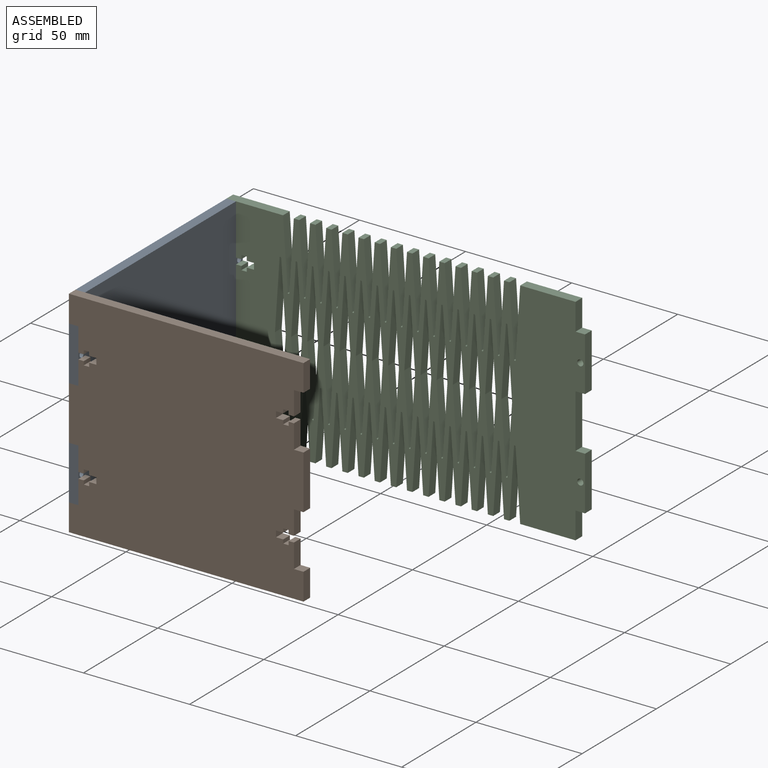
[diagram: assembled view]
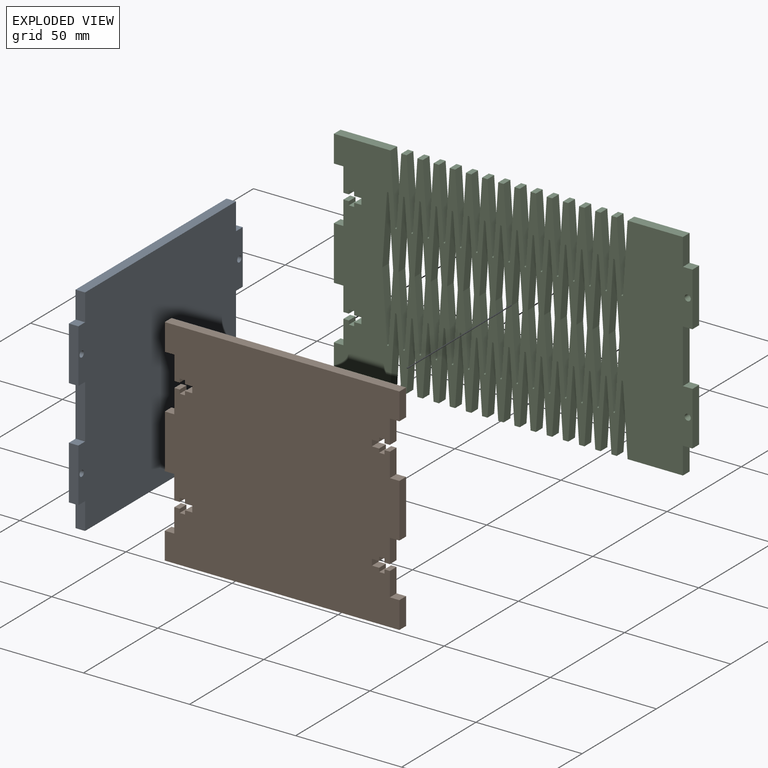
[diagram: exploded view]
GUIDED TOUR — MATED ASSEMBLY (Onshape document 620fd56f94842f0f758b062b, AutoMate assembly 620fd56f94842f0f758b062b_859dbe9e5be941bf207c56d8_f9bc85e75ceb082ee471d92e_default)

This assembly has 3 components, labeled P0..P2 below (a component is one placed occurrence of a part; the same part can appear more than once), held together by 7 mates. A mate is a constraint between two components; its type names the relative motion it leaves free:
  PARALLEL — keeps the two listed directions parallel,
  PLANAR — leaves sliding in the plane through the listed point (normal = the listed direction) and rotation about that normal free,
  SLIDER — leaves translation along the listed axis free.
Axis/direction vectors are unit vectors and 'through' points are millimeter coordinates, both in the assembly's world frame.

MATES
  1. PLANAR "Planar 3": P2 <-> P0, direction (0.000, 1.000, 0.000) through (-87.30, -43.30, -77.40) mm
  2. PARALLEL "Parallel 1": P1 <-> P0, direction (-1.000, 0.000, 0.000) through (-174.18, -151.64, -77.40) mm
  3. PARALLEL "Parallel 2": P0 <-> P1, direction (0.000, -1.000, 0.000) through (-171.93, -153.89, -102.80) mm
  4. PLANAR "Planar 1": P0 <-> P1, direction (0.000, 0.000, -1.000) through (-169.68, -149.40, -128.20) mm
  5. PLANAR "Planar 4": P2 <-> P0, direction (0.000, 0.000, 1.000) through (-22.70, -45.55, -26.60) mm
  6. PLANAR "Planar 2": P0 <-> P2, direction (-1.000, 0.000, 0.000) through (-174.18, -98.60, -77.40) mm
  7. SLIDER "Slider 1": P0 <-> P1, axis (0.000, 0.000, -1.000) through (-171.93, -151.64, -115.50) mm

ASSEMBLY ORDER
  1. P0 — the base component [order verified]
  2. P2 [order verified]
  3. P1 [order verified]
Order-tag legend:
  [order verified] — this step's position reverses a verified removal order: the component was checked to insert without passing through the ones already placed.

Of the 3 components, 2 carry the full construction recipe — the FeatureScript program that regenerates the part's solid from scratch; the rest are supplied as boundary geometry only.
Each toured component is shown spotlighted twice — in the assembled view, then in the exploded view, where a leader line traces a displaced component back to its assembled socket (saturated green if recipe-attached, orange if geometry-only; every other component desaturated gray) — followed by its recipe or geometry summary and the mates that hold it.
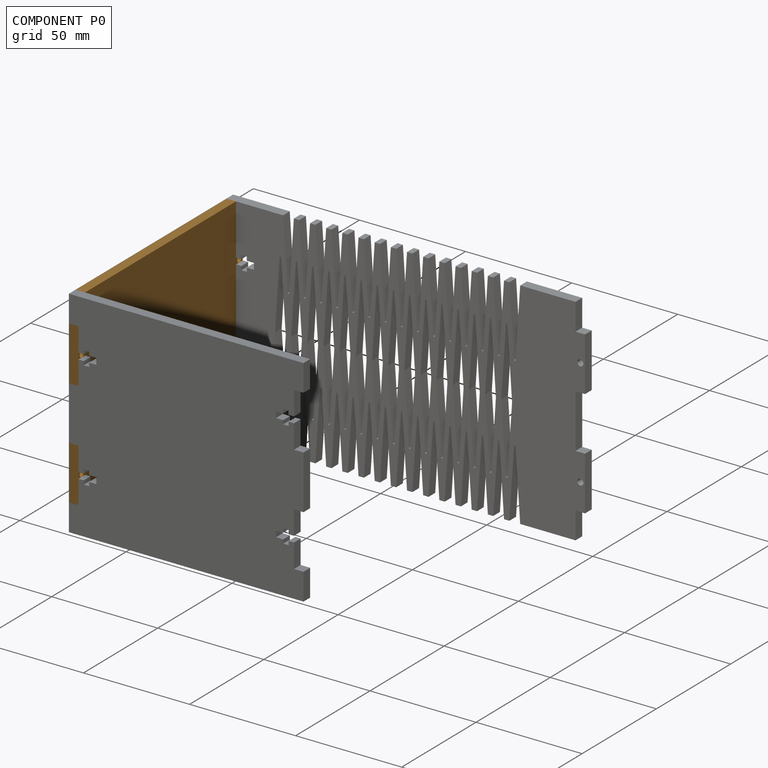
[diagram: component P0 — assembled]
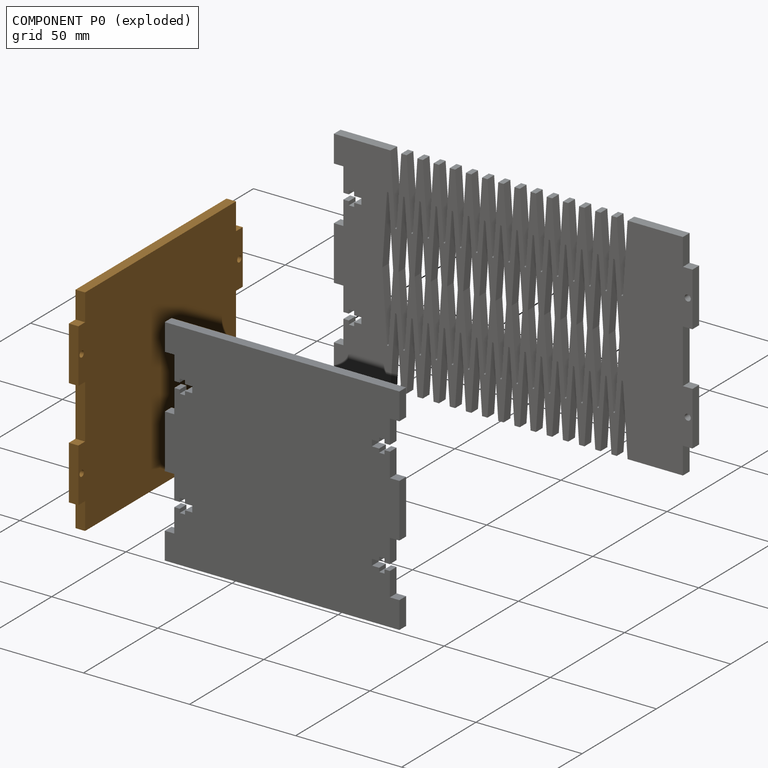
[diagram: component P0 — exploded]
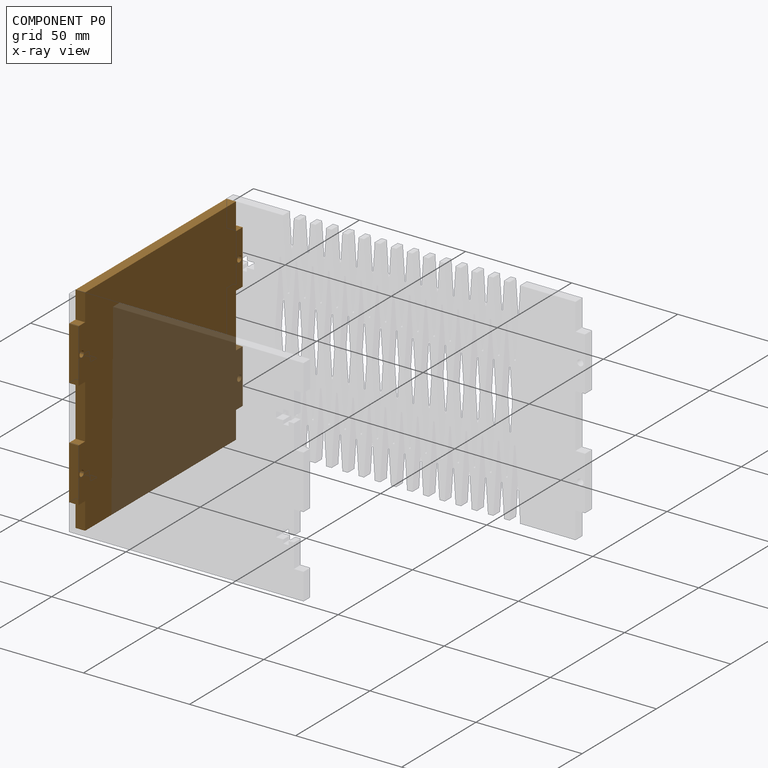
[diagram: component P0 — x-ray view]
COMPONENT P0 — geometry summary (no construction recipe available for this part):
  bounding box: 110.6 x 101.6 x 4.5 mm
  B-rep topology: 1 solid, 26 faces, 144 edges
  volume: 48343 mm^3 (96% of its bounding box)
  symmetry: 2-fold rotationally symmetric about the x axis; 2-fold rotationally symmetric about the y axis; 2-fold rotationally symmetric about the z axis; mirror-symmetric across its x mid-plane, y mid-plane, z mid-plane
Held by: PLANAR mate "Planar 3" to P2; PARALLEL mate "Parallel 1" to P1; PARALLEL mate "Parallel 2" to P1; PLANAR mate "Planar 1" to P1; PLANAR mate "Planar 4" to P2; PLANAR mate "Planar 2" to P2; SLIDER mate "Slider 1" to P1.
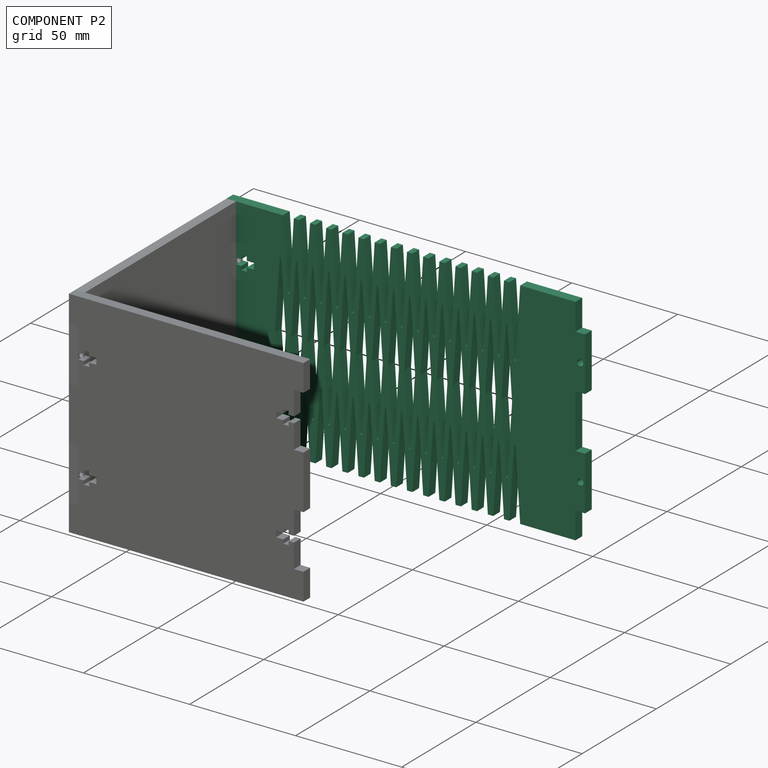
[diagram: component P2 — assembled]
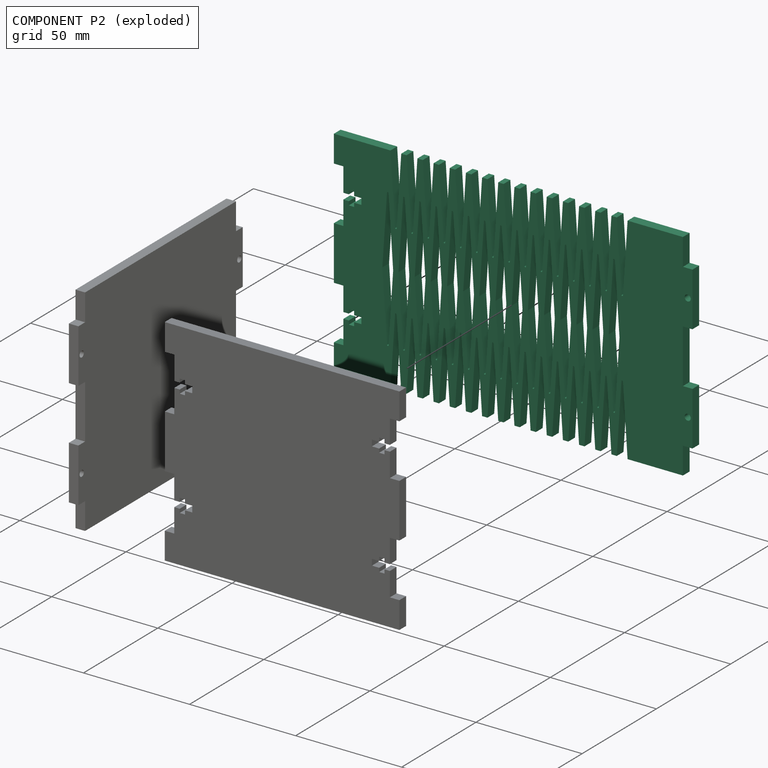
[diagram: component P2 — exploded]
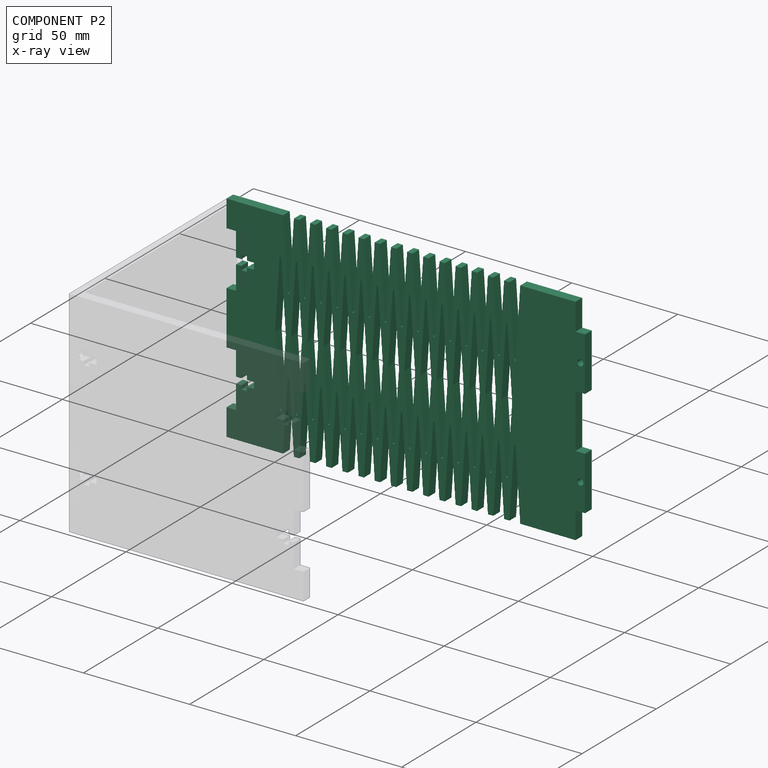
[diagram: component P2 — x-ray view]
COMPONENT P2 — recipe-attached (CADFS 00814797, mesh-verified: the recipe's output STEP matches this component's geometry to below the mesh-comparison resolution (tessellation chordal tolerance ~0.296 mm)).
Held by: PLANAR mate "Planar 3" to P0; PLANAR mate "Planar 4" to P0; PLANAR mate "Planar 2" to P0.
Construction recipe (FeatureScript — the CAD program that rebuilds this solid; sketch coordinates are in the units given by the * unit suffixes, e.g. mm):

FeatureScript 1511;
import(path : "onshape/std/geometry.fs", version : "1511.0");
import(path : "onshape/std/common.fs", version : "1511.0");
const mm = millimeter;
const VERTEX = EntityType.VERTEX;
const EDGE = EntityType.EDGE;
const FACE = EntityType.FACE;
const BODY = EntityType.BODY;
function v(x, y){return vector(x, y);}
function OD(order){return orderDisambiguation(order);}
function OSD(set){return originalSetDisambiguation(set);}
function TD(topology){return topologyDisambiguation(topology);}
function TDD(query){return trueDependencyDisambiguation(query);}
function sQuery(a, b, c) {return sketchEntityQuery(a, b, c);}

annotation { "Feature Type Name" : "Feature", "Feature Type Description" : "" }
export const myFeature = defineFeature(function(context is Context, id is Id, definition is map)
    precondition{}
    {
        {
            var Q0;
            Q0=qCreatedBy(makeId("Top.planeOp"),FACE);
            var sketch = newSketch(context, id + "F0", { "sketchPlane" : qUnion([Q0])});
            skLineSegment(sketch, "E0.bottom", {"start": v(-80, 50.8) * mm, "end": v(80.01, 50.8) * mm});
            skLineSegment(sketch, "E0.top", {"start": v(-80, -50.8) * mm, "end": v(80.01, -50.8) * mm});
            skLineSegment(sketch, "E1", {"start": v(-80.01, 50.8) * mm, "end": v(80.01, -50.8) * mm, "construction": true});
            skLineSegment(sketch, "E2.left", {"start": v(-80, 38.1) * mm, "end": v(-80, 26.85) * mm});
            skLineSegment(sketch, "E3", {"start": v(-80, 50.8) * mm, "end": v(-84.5, 50.8) * mm});
            skLineSegment(sketch, "E4", {"start": v(-84.5, 50.8) * mm, "end": v(-84.5, 38.1) * mm});
            skLineSegment(sketch, "E5", {"start": v(-84.5, 38.1) * mm, "end": v(-80, 38.1) * mm});
            skLineSegment(sketch, "E6", {"start": v(-80, 12.7) * mm, "end": v(-84.5, 12.7) * mm});
            skLineSegment(sketch, "E7", {"start": v(-84.5, 12.7) * mm, "end": v(-84.5, 0) * mm});
            skLineSegment(sketch, "E8", {"start": v(-80, 26.85) * mm, "end": v(-77.47, 26.85) * mm});
            skLineSegment(sketch, "E9", {"start": v(-77.47, 26.85) * mm, "end": v(-77.47, 28.64) * mm});
            skLineSegment(sketch, "E10", {"start": v(-77.47, 28.64) * mm, "end": v(-74.96, 28.64) * mm});
            skLineSegment(sketch, "E11", {"start": v(-74.96, 28.64) * mm, "end": v(-74.96, 26.85) * mm});
            skLineSegment(sketch, "E12", {"start": v(-74.96, 26.85) * mm, "end": v(-71.55, 26.85) * mm});
            skLineSegment(sketch, "E13", {"start": v(-71.55, 26.85) * mm, "end": v(-71.55, 23.95) * mm});
            skLineSegment(sketch, "E14", {"start": v(-71.55, 23.95) * mm, "end": v(-74.96, 23.95) * mm});
            skLineSegment(sketch, "E15", {"start": v(-74.96, 23.95) * mm, "end": v(-74.96, 22.16) * mm});
            skLineSegment(sketch, "E16", {"start": v(-74.96, 22.16) * mm, "end": v(-77.47, 22.16) * mm});
            skLineSegment(sketch, "E17", {"start": v(-77.47, 22.16) * mm, "end": v(-77.47, 23.95) * mm});
            skLineSegment(sketch, "E18", {"start": v(-77.47, 23.95) * mm, "end": v(-80, 23.95) * mm});
            skLineSegment(sketch, "E19", {"start": v(-77.47, 26.85) * mm, "end": v(-77.47, 23.95) * mm, "construction": true});
            skLineSegment(sketch, "E20", {"start": v(-74.96, 26.85) * mm, "end": v(-74.96, 23.95) * mm, "construction": true});
            skLineSegment(sketch, "E21", {"start": v(-71.55, 25.4) * mm, "end": v(-80, 25.4) * mm, "construction": true});
            skPoint(sketch, "E21.endSnap0", {"position": v(-74.96, 25.4) * mm});
            skLineSegment(sketch, "E22", {"start": v(-80, 23.95) * mm, "end": v(-80, 12.7) * mm});
            skLineSegment(sketch, "E23", {"start": v(-80, 23.95) * mm, "end": v(-80, 26.85) * mm, "construction": true});
            skLineSegment(sketch, "E24", {"start": v(0, 0) * mm, "end": v(-84.5, 0) * mm, "construction": true});
            skLineSegment(sketch, "E25.MirrorCS", {"start": v(-77.47, -26.85) * mm, "end": v(-77.47, -28.64) * mm});
            skLineSegment(sketch, "E26.MirrorCS", {"start": v(-77.47, -28.64) * mm, "end": v(-74.96, -28.64) * mm});
            skLineSegment(sketch, "E27.MirrorCS", {"start": v(-74.96, -28.64) * mm, "end": v(-74.96, -26.85) * mm});
            skLineSegment(sketch, "E28.MirrorCS", {"start": v(-80, -26.85) * mm, "end": v(-77.47, -26.85) * mm});
            skLineSegment(sketch, "E29.MirrorCS", {"start": v(-71.55, -23.95) * mm, "end": v(-74.96, -23.95) * mm});
            skLineSegment(sketch, "E30.MirrorCS", {"start": v(-74.96, -26.85) * mm, "end": v(-74.96, -23.95) * mm, "construction": true});
            skLineSegment(sketch, "E31.MirrorCS", {"start": v(-77.47, -23.95) * mm, "end": v(-80, -23.95) * mm});
            skLineSegment(sketch, "E32.MirrorCS", {"start": v(-71.55, -25.4) * mm, "end": v(-80, -25.4) * mm, "construction": true});
            skLineSegment(sketch, "E33.MirrorCS", {"start": v(-74.96, -23.95) * mm, "end": v(-74.96, -22.16) * mm});
            skLineSegment(sketch, "E34.MirrorCS", {"start": v(-77.47, -22.16) * mm, "end": v(-77.47, -23.95) * mm});
            skLineSegment(sketch, "E35.MirrorCS", {"start": v(-80, -23.95) * mm, "end": v(-80, -26.85) * mm, "construction": true});
            skLineSegment(sketch, "E36.MirrorCS", {"start": v(-77.47, -26.85) * mm, "end": v(-77.47, -23.95) * mm, "construction": true});
            skLineSegment(sketch, "E37.MirrorCS", {"start": v(-74.96, -26.85) * mm, "end": v(-71.55, -26.85) * mm});
            skLineSegment(sketch, "E38.MirrorCS", {"start": v(-71.55, -26.85) * mm, "end": v(-71.55, -23.95) * mm});
            skLineSegment(sketch, "E39.MirrorCS", {"start": v(-74.96, -22.16) * mm, "end": v(-77.47, -22.16) * mm});
            skLineSegment(sketch, "E40.MirrorCS", {"start": v(-80, -12.7) * mm, "end": v(-84.5, -12.7) * mm});
            skLineSegment(sketch, "E41.MirrorCS", {"start": v(-84.5, -38.1) * mm, "end": v(-80, -38.1) * mm});
            skLineSegment(sketch, "E42.MirrorCS", {"start": v(-80, -50.8) * mm, "end": v(-84.5, -50.8) * mm});
            skLineSegment(sketch, "E43.MirrorCS", {"start": v(-84.5, -12.7) * mm, "end": v(-84.5, 0) * mm});
            skLineSegment(sketch, "E44.MirrorCS", {"start": v(-80, -23.95) * mm, "end": v(-80, -12.7) * mm});
            skPoint(sketch, "E45.MirrorP", {"position": v(-74.96, -25.4) * mm});
            skLineSegment(sketch, "E46.MirrorCS", {"start": v(-84.5, -50.8) * mm, "end": v(-84.5, -38.1) * mm});
            skLineSegment(sketch, "E47.MirrorCS", {"start": v(-80, -38.1) * mm, "end": v(-80, -26.85) * mm});
            skLineSegment(sketch, "E48.MirrorCS", {"start": v(80.01, 50.8) * mm, "end": v(80.01, 38.1) * mm});
            skLineSegment(sketch, "E49", {"start": v(80.01, 38.1) * mm, "end": v(84.5, 38.1) * mm});
            skLineSegment(sketch, "E50", {"start": v(84.5, 38.1) * mm, "end": v(84.5, 12.7) * mm});
            skLineSegment(sketch, "E51", {"start": v(84.5, 12.7) * mm, "end": v(80.01, 12.7) * mm});
            skLineSegment(sketch, "E52", {"start": v(80.01, 12.7) * mm, "end": v(80.01, 0) * mm});
            skCircle(sketch, "E53", {"center": v(82.26, 25.4) * mm, "radius": 1.45 * mm});
            skPoint(sketch, "E53.centerSnap0", {"position": v(84.5, 25.4) * mm});
            skLineSegment(sketch, "E54", {"start": v(0, 0) * mm, "end": v(80, 0) * mm, "construction": true});
            skLineSegment(sketch, "E55", {"start": v(84.5, 38.1) * mm, "end": v(80.01, 12.7) * mm, "construction": true});
            skLineSegment(sketch, "E56.MirrorCS", {"start": v(80.01, -38.1) * mm, "end": v(84.5, -38.1) * mm});
            skLineSegment(sketch, "E57.MirrorCS", {"start": v(84.5, -12.7) * mm, "end": v(80.01, -12.7) * mm});
            skCircle(sketch, "E58.MirrorC", {"center": v(82.26, -25.4) * mm, "radius": 1.45 * mm});
            skLineSegment(sketch, "E59.MirrorCS", {"start": v(80.01, -12.7) * mm, "end": v(80.01, 0) * mm});
            skLineSegment(sketch, "E60.MirrorCS", {"start": v(80.01, -50.8) * mm, "end": v(80.01, -38.1) * mm});
            skPoint(sketch, "E61.MirrorP", {"position": v(84.5, -25.4) * mm});
            skLineSegment(sketch, "E62.MirrorCS", {"start": v(84.5, -38.1) * mm, "end": v(84.5, -12.7) * mm});
            skSolve(sketch);
        }
        {
            var Q0;
            Q0 = qSketchRegion(id + "F0", true);
            extrude(context, id + "F1", {"entities" : qUnion([Q0]), "depth" : 4.5 * mm, "offsetDistance" : 25.4 * mm});
        }
        {
            var Q0;
            Q0=makeQuery(id+"F1.opExtrude","CAP_FACE",FACE,{"disambiguationData":[OSD([sQuery(id+"F0.wireOp",EDGE,"E0.bottom"),sQuery(id+"F0.wireOp",EDGE,"E0.top"),sQuery(id+"F0.wireOp",EDGE,"E2.left"),sQuery(id+"F0.wireOp",EDGE,"E3"),sQuery(id+"F0.wireOp",EDGE,"E4"),sQuery(id+"F0.wireOp",EDGE,"E5"),sQuery(id+"F0.wireOp",EDGE,"E6"),sQuery(id+"F0.wireOp",EDGE,"E7"),sQuery(id+"F0.wireOp",EDGE,"E8"),sQuery(id+"F0.wireOp",EDGE,"E9"),sQuery(id+"F0.wireOp",EDGE,"E10"),sQuery(id+"F0.wireOp",EDGE,"E11"),sQuery(id+"F0.wireOp",EDGE,"E12"),sQuery(id+"F0.wireOp",EDGE,"E13"),sQuery(id+"F0.wireOp",EDGE,"E14"),sQuery(id+"F0.wireOp",EDGE,"E15"),sQuery(id+"F0.wireOp",EDGE,"E16"),sQuery(id+"F0.wireOp",EDGE,"E17"),sQuery(id+"F0.wireOp",EDGE,"E18"),sQuery(id+"F0.wireOp",EDGE,"E22"),sQuery(id+"F0.wireOp",EDGE,"E25.MirrorCS"),sQuery(id+"F0.wireOp",EDGE,"E26.MirrorCS"),sQuery(id+"F0.wireOp",EDGE,"E27.MirrorCS"),sQuery(id+"F0.wireOp",EDGE,"E28.MirrorCS"),sQuery(id+"F0.wireOp",EDGE,"E29.MirrorCS"),sQuery(id+"F0.wireOp",EDGE,"E31.MirrorCS"),sQuery(id+"F0.wireOp",EDGE,"E33.MirrorCS"),sQuery(id+"F0.wireOp",EDGE,"E34.MirrorCS"),sQuery(id+"F0.wireOp",EDGE,"E37.MirrorCS"),sQuery(id+"F0.wireOp",EDGE,"E38.MirrorCS"),sQuery(id+"F0.wireOp",EDGE,"E39.MirrorCS"),sQuery(id+"F0.wireOp",EDGE,"E40.MirrorCS"),sQuery(id+"F0.wireOp",EDGE,"E41.MirrorCS"),sQuery(id+"F0.wireOp",EDGE,"E42.MirrorCS"),sQuery(id+"F0.wireOp",EDGE,"E43.MirrorCS"),sQuery(id+"F0.wireOp",EDGE,"E44.MirrorCS"),sQuery(id+"F0.wireOp",EDGE,"E46.MirrorCS"),sQuery(id+"F0.wireOp",EDGE,"E47.MirrorCS"),sQuery(id+"F0.wireOp",EDGE,"E48.MirrorCS"),sQuery(id+"F0.wireOp",EDGE,"E49"),sQuery(id+"F0.wireOp",EDGE,"E50"),sQuery(id+"F0.wireOp",EDGE,"E51"),sQuery(id+"F0.wireOp",EDGE,"E52"),sQuery(id+"F0.wireOp",EDGE,"E53"),sQuery(id+"F0.wireOp",EDGE,"E56.MirrorCS"),sQuery(id+"F0.wireOp",EDGE,"E57.MirrorCS"),sQuery(id+"F0.wireOp",EDGE,"E58.MirrorC"),sQuery(id+"F0.wireOp",EDGE,"E59.MirrorCS"),sQuery(id+"F0.wireOp",EDGE,"E60.MirrorCS"),sQuery(id+"F0.wireOp",EDGE,"E62.MirrorCS")])],"isStart":false});
            var sketch = newSketch(context, id + "F2", { "sketchPlane" : qUnion([Q0])});
            skLineSegment(sketch, "E63", {"start": v(-59.49, 32.4) * mm, "end": v(-61.65, 0) * mm});
            skLineSegment(sketch, "E64", {"start": v(-61.65, 0) * mm, "end": v(-56.57, 0) * mm, "construction": true});
            skLineSegment(sketch, "E65", {"start": v(-56.57, 0) * mm, "end": v(-58.73, 32.4) * mm});
            skLineSegment(sketch, "E66", {"start": v(-57.84, 50.8) * mm, "end": v(-55.68, 18.4) * mm});
            skLineSegment(sketch, "E67", {"start": v(-54.92, 18.4) * mm, "end": v(-52.76, 50.8) * mm});
            skLineSegment(sketch, "E68", {"start": v(-52.76, 50.8) * mm, "end": v(-57.84, 50.8) * mm});
            skLineSegment(sketch, "E69", {"start": v(-59.1, 38.1) * mm, "end": v(-59.1, 0) * mm, "construction": true});
            skLineSegment(sketch, "E70", {"start": v(-55.3, 12.7) * mm, "end": v(-55.3, 50.8) * mm, "construction": true});
            skPoint(sketch, "E71.visualSharp", {"position": v(-59.1, 38.1) * mm});
            skArc(sketch, "E71.filletArc", {"start": v(-58.73, 32.4) * mm, "mid": v(-59.1, 32.75) * mm, "end": v(-59.49, 32.4) * mm});
            skPoint(sketch, "E72.visualSharp", {"position": v(-55.3, 12.7) * mm});
            skArc(sketch, "E72.filletArc", {"start": v(-55.68, 18.4) * mm, "mid": v(-55.3, 18.05) * mm, "end": v(-54.92, 18.4) * mm});
            skArc(sketch, "E73.MirrorCS", {"start": v(-55.68, -18.4) * mm, "mid": v(-55.3, -18.05) * mm, "end": v(-54.92, -18.4) * mm});
            skArc(sketch, "E74.MirrorCS", {"start": v(-58.73, -32.4) * mm, "mid": v(-59.1, -32.75) * mm, "end": v(-59.49, -32.4) * mm});
            skLineSegment(sketch, "E75.MirrorCS", {"start": v(-52.76, -50.8) * mm, "end": v(-57.84, -50.8) * mm});
            skLineSegment(sketch, "E76.MirrorCS", {"start": v(-57.84, -50.8) * mm, "end": v(-55.68, -18.4) * mm});
            skLineSegment(sketch, "E77.MirrorCS", {"start": v(-56.57, 0) * mm, "end": v(-58.73, -32.4) * mm});
            skPoint(sketch, "E78.MirrorP", {"position": v(-59.1, -38.1) * mm});
            skLineSegment(sketch, "E79.MirrorCS", {"start": v(-54.92, -18.4) * mm, "end": v(-52.76, -50.8) * mm});
            skPoint(sketch, "E80.MirrorP", {"position": v(-55.3, -12.7) * mm});
            skLineSegment(sketch, "E81.MirrorCS", {"start": v(-59.49, -32.4) * mm, "end": v(-61.65, 0) * mm});
            skLineSegment(sketch, "E82.1.0.0", {"start": v(-51.87, -32.4) * mm, "end": v(-54.03, 0) * mm});
            skPoint(sketch, "E82.1.0.1", {"position": v(-47.68, -12.7) * mm});
            skPoint(sketch, "E82.1.0.2", {"position": v(-51.49, -38.1) * mm});
            skLineSegment(sketch, "E82.1.0.3", {"start": v(-50.22, 50.8) * mm, "end": v(-48.06, 18.4) * mm});
            skLineSegment(sketch, "E82.1.0.4", {"start": v(-47.3, -18.4) * mm, "end": v(-45.14, -50.8) * mm});
            skLineSegment(sketch, "E82.1.0.5", {"start": v(-48.95, 0) * mm, "end": v(-51.1, -32.4) * mm});
            skPoint(sketch, "E82.1.0.6", {"position": v(-51.49, 38.1) * mm});
            skLineSegment(sketch, "E82.1.0.7", {"start": v(-48.95, 0) * mm, "end": v(-51.1, 32.4) * mm});
            skLineSegment(sketch, "E82.1.0.8", {"start": v(-51.49, 38.1) * mm, "end": v(-51.49, 0) * mm, "construction": true});
            skLineSegment(sketch, "E82.1.0.9", {"start": v(-47.3, 18.4) * mm, "end": v(-45.14, 50.8) * mm});
            skLineSegment(sketch, "E82.1.0.10", {"start": v(-51.87, 32.4) * mm, "end": v(-54.03, 0) * mm});
            skPoint(sketch, "E82.1.0.11", {"position": v(-47.68, 12.7) * mm});
            skLineSegment(sketch, "E82.1.0.12", {"start": v(-47.68, 12.7) * mm, "end": v(-47.68, 50.8) * mm, "construction": true});
            skLineSegment(sketch, "E82.1.0.13", {"start": v(-50.22, -50.8) * mm, "end": v(-48.06, -18.4) * mm});
            skLineSegment(sketch, "E82.1.0.14", {"start": v(-45.14, -50.8) * mm, "end": v(-50.22, -50.8) * mm});
            skArc(sketch, "E82.1.0.15", {"start": v(-48.06, -18.4) * mm, "mid": v(-47.68, -18.05) * mm, "end": v(-47.3, -18.4) * mm});
            skLineSegment(sketch, "E82.1.0.16", {"start": v(-54.03, 0) * mm, "end": v(-48.95, 0) * mm, "construction": true});
            skLineSegment(sketch, "E82.1.0.17", {"start": v(-45.14, 50.8) * mm, "end": v(-50.22, 50.8) * mm});
            skArc(sketch, "E82.1.0.18", {"start": v(-48.06, 18.4) * mm, "mid": v(-47.68, 18.05) * mm, "end": v(-47.3, 18.4) * mm});
            skArc(sketch, "E82.1.0.19", {"start": v(-51.1, -32.4) * mm, "mid": v(-51.49, -32.75) * mm, "end": v(-51.87, -32.4) * mm});
            skArc(sketch, "E82.1.0.20", {"start": v(-51.1, 32.4) * mm, "mid": v(-51.49, 32.75) * mm, "end": v(-51.87, 32.4) * mm});
            skLineSegment(sketch, "E82.2.0.0", {"start": v(-44.25, -32.4) * mm, "end": v(-46.4, 0) * mm});
            skPoint(sketch, "E82.2.0.1", {"position": v(-40.06, -12.7) * mm});
            skPoint(sketch, "E82.2.0.2", {"position": v(-43.87, -38.1) * mm});
            skLineSegment(sketch, "E82.2.0.3", {"start": v(-42.6, 50.8) * mm, "end": v(-40.44, 18.4) * mm});
            skLineSegment(sketch, "E82.2.0.4", {"start": v(-39.68, -18.4) * mm, "end": v(-37.52, -50.8) * mm});
            skLineSegment(sketch, "E82.2.0.5", {"start": v(-41.33, 0) * mm, "end": v(-43.49, -32.4) * mm});
            skPoint(sketch, "E82.2.0.6", {"position": v(-43.87, 38.1) * mm});
            skLineSegment(sketch, "E82.2.0.7", {"start": v(-41.33, 0) * mm, "end": v(-43.49, 32.4) * mm});
            skLineSegment(sketch, "E82.2.0.8", {"start": v(-43.87, 38.1) * mm, "end": v(-43.87, 0) * mm, "construction": true});
            skLineSegment(sketch, "E82.2.0.9", {"start": v(-39.68, 18.4) * mm, "end": v(-37.52, 50.8) * mm});
            skLineSegment(sketch, "E82.2.0.10", {"start": v(-44.25, 32.4) * mm, "end": v(-46.4, 0) * mm});
            skPoint(sketch, "E82.2.0.11", {"position": v(-40.06, 12.7) * mm});
            skLineSegment(sketch, "E82.2.0.12", {"start": v(-40.06, 12.7) * mm, "end": v(-40.06, 50.8) * mm, "construction": true});
            skLineSegment(sketch, "E82.2.0.13", {"start": v(-42.6, -50.8) * mm, "end": v(-40.44, -18.4) * mm});
            skLineSegment(sketch, "E82.2.0.14", {"start": v(-37.52, -50.8) * mm, "end": v(-42.6, -50.8) * mm});
            skArc(sketch, "E82.2.0.15", {"start": v(-40.44, -18.4) * mm, "mid": v(-40.06, -18.05) * mm, "end": v(-39.68, -18.4) * mm});
            skLineSegment(sketch, "E82.2.0.16", {"start": v(-46.4, 0) * mm, "end": v(-41.33, 0) * mm, "construction": true});
            skLineSegment(sketch, "E82.2.0.17", {"start": v(-37.52, 50.8) * mm, "end": v(-42.6, 50.8) * mm});
            skArc(sketch, "E82.2.0.18", {"start": v(-40.44, 18.4) * mm, "mid": v(-40.06, 18.05) * mm, "end": v(-39.68, 18.4) * mm});
            skArc(sketch, "E82.2.0.19", {"start": v(-43.49, -32.4) * mm, "mid": v(-43.87, -32.75) * mm, "end": v(-44.25, -32.4) * mm});
            skArc(sketch, "E82.2.0.20", {"start": v(-43.49, 32.4) * mm, "mid": v(-43.87, 32.75) * mm, "end": v(-44.25, 32.4) * mm});
            skLineSegment(sketch, "E82.3.0.0", {"start": v(-36.63, -32.4) * mm, "end": v(-38.79, 0) * mm});
            skPoint(sketch, "E82.3.0.1", {"position": v(-32.44, -12.7) * mm});
            skPoint(sketch, "E82.3.0.2", {"position": v(-36.25, -38.1) * mm});
            skLineSegment(sketch, "E82.3.0.3", {"start": v(-34.98, 50.8) * mm, "end": v(-32.82, 18.4) * mm});
            skLineSegment(sketch, "E82.3.0.4", {"start": v(-32.06, -18.4) * mm, "end": v(-29.9, -50.8) * mm});
            skLineSegment(sketch, "E82.3.0.5", {"start": v(-33.7, 0) * mm, "end": v(-35.87, -32.4) * mm});
            skPoint(sketch, "E82.3.0.6", {"position": v(-36.25, 38.1) * mm});
            skLineSegment(sketch, "E82.3.0.7", {"start": v(-33.7, 0) * mm, "end": v(-35.87, 32.4) * mm});
            skLineSegment(sketch, "E82.3.0.8", {"start": v(-36.25, 38.1) * mm, "end": v(-36.25, 0) * mm, "construction": true});
            skLineSegment(sketch, "E82.3.0.9", {"start": v(-32.06, 18.4) * mm, "end": v(-29.9, 50.8) * mm});
            skLineSegment(sketch, "E82.3.0.10", {"start": v(-36.63, 32.4) * mm, "end": v(-38.79, 0) * mm});
            skPoint(sketch, "E82.3.0.11", {"position": v(-32.44, 12.7) * mm});
            skLineSegment(sketch, "E82.3.0.12", {"start": v(-32.44, 12.7) * mm, "end": v(-32.44, 50.8) * mm, "construction": true});
            skLineSegment(sketch, "E82.3.0.13", {"start": v(-34.98, -50.8) * mm, "end": v(-32.82, -18.4) * mm});
            skLineSegment(sketch, "E82.3.0.14", {"start": v(-29.9, -50.8) * mm, "end": v(-34.98, -50.8) * mm});
            skArc(sketch, "E82.3.0.15", {"start": v(-32.82, -18.4) * mm, "mid": v(-32.44, -18.05) * mm, "end": v(-32.06, -18.4) * mm});
            skLineSegment(sketch, "E82.3.0.16", {"start": v(-38.79, 0) * mm, "end": v(-33.7, 0) * mm, "construction": true});
            skLineSegment(sketch, "E82.3.0.17", {"start": v(-29.9, 50.8) * mm, "end": v(-34.98, 50.8) * mm});
            skArc(sketch, "E82.3.0.18", {"start": v(-32.82, 18.4) * mm, "mid": v(-32.44, 18.05) * mm, "end": v(-32.06, 18.4) * mm});
            skArc(sketch, "E82.3.0.19", {"start": v(-35.87, -32.4) * mm, "mid": v(-36.25, -32.75) * mm, "end": v(-36.63, -32.4) * mm});
            skArc(sketch, "E82.3.0.20", {"start": v(-35.87, 32.4) * mm, "mid": v(-36.25, 32.75) * mm, "end": v(-36.63, 32.4) * mm});
            skLineSegment(sketch, "E82.4.0.0", {"start": v(-29, -32.4) * mm, "end": v(-31.17, 0) * mm});
            skPoint(sketch, "E82.4.0.1", {"position": v(-24.82, -12.7) * mm});
            skPoint(sketch, "E82.4.0.2", {"position": v(-28.63, -38.1) * mm});
            skLineSegment(sketch, "E82.4.0.3", {"start": v(-27.36, 50.8) * mm, "end": v(-25.2, 18.4) * mm});
            skLineSegment(sketch, "E82.4.0.4", {"start": v(-24.44, -18.4) * mm, "end": v(-22.28, -50.8) * mm});
            skLineSegment(sketch, "E82.4.0.5", {"start": v(-26.09, 0) * mm, "end": v(-28.25, -32.4) * mm});
            skPoint(sketch, "E82.4.0.6", {"position": v(-28.63, 38.1) * mm});
            skLineSegment(sketch, "E82.4.0.7", {"start": v(-26.09, 0) * mm, "end": v(-28.25, 32.4) * mm});
            skLineSegment(sketch, "E82.4.0.8", {"start": v(-28.63, 38.1) * mm, "end": v(-28.63, 0) * mm, "construction": true});
            skLineSegment(sketch, "E82.4.0.9", {"start": v(-24.44, 18.4) * mm, "end": v(-22.28, 50.8) * mm});
            skLineSegment(sketch, "E82.4.0.10", {"start": v(-29, 32.4) * mm, "end": v(-31.17, 0) * mm});
            skPoint(sketch, "E82.4.0.11", {"position": v(-24.82, 12.7) * mm});
            skLineSegment(sketch, "E82.4.0.12", {"start": v(-24.82, 12.7) * mm, "end": v(-24.82, 50.8) * mm, "construction": true});
            skLineSegment(sketch, "E82.4.0.13", {"start": v(-27.36, -50.8) * mm, "end": v(-25.2, -18.4) * mm});
            skLineSegment(sketch, "E82.4.0.14", {"start": v(-22.28, -50.8) * mm, "end": v(-27.36, -50.8) * mm});
            skArc(sketch, "E82.4.0.15", {"start": v(-25.2, -18.4) * mm, "mid": v(-24.82, -18.05) * mm, "end": v(-24.44, -18.4) * mm});
            skLineSegment(sketch, "E82.4.0.16", {"start": v(-31.17, 0) * mm, "end": v(-26.09, 0) * mm, "construction": true});
            skLineSegment(sketch, "E82.4.0.17", {"start": v(-22.28, 50.8) * mm, "end": v(-27.36, 50.8) * mm});
            skArc(sketch, "E82.4.0.18", {"start": v(-25.2, 18.4) * mm, "mid": v(-24.82, 18.05) * mm, "end": v(-24.44, 18.4) * mm});
            skArc(sketch, "E82.4.0.19", {"start": v(-28.25, -32.4) * mm, "mid": v(-28.63, -32.75) * mm, "end": v(-29, -32.4) * mm});
            skArc(sketch, "E82.4.0.20", {"start": v(-28.25, 32.4) * mm, "mid": v(-28.63, 32.75) * mm, "end": v(-29, 32.4) * mm});
            skLineSegment(sketch, "E82.5.0.0", {"start": v(-21.39, -32.4) * mm, "end": v(-23.55, 0) * mm});
            skPoint(sketch, "E82.5.0.1", {"position": v(-17.2, -12.7) * mm});
            skPoint(sketch, "E82.5.0.2", {"position": v(-21, -38.1) * mm});
            skLineSegment(sketch, "E82.5.0.3", {"start": v(-19.74, 50.8) * mm, "end": v(-17.58, 18.4) * mm});
            skLineSegment(sketch, "E82.5.0.4", {"start": v(-16.82, -18.4) * mm, "end": v(-14.66, -50.8) * mm});
            skLineSegment(sketch, "E82.5.0.5", {"start": v(-18.47, 0) * mm, "end": v(-20.63, -32.4) * mm});
            skPoint(sketch, "E82.5.0.6", {"position": v(-21, 38.1) * mm});
            skLineSegment(sketch, "E82.5.0.7", {"start": v(-18.47, 0) * mm, "end": v(-20.63, 32.4) * mm});
            skLineSegment(sketch, "E82.5.0.8", {"start": v(-21, 38.1) * mm, "end": v(-21, 0) * mm, "construction": true});
            skLineSegment(sketch, "E82.5.0.9", {"start": v(-16.82, 18.4) * mm, "end": v(-14.66, 50.8) * mm});
            skLineSegment(sketch, "E82.5.0.10", {"start": v(-21.39, 32.4) * mm, "end": v(-23.55, 0) * mm});
            skPoint(sketch, "E82.5.0.11", {"position": v(-17.2, 12.7) * mm});
            skLineSegment(sketch, "E82.5.0.12", {"start": v(-17.2, 12.7) * mm, "end": v(-17.2, 50.8) * mm, "construction": true});
            skLineSegment(sketch, "E82.5.0.13", {"start": v(-19.74, -50.8) * mm, "end": v(-17.58, -18.4) * mm});
            skLineSegment(sketch, "E82.5.0.14", {"start": v(-14.66, -50.8) * mm, "end": v(-19.74, -50.8) * mm});
            skArc(sketch, "E82.5.0.15", {"start": v(-17.58, -18.4) * mm, "mid": v(-17.2, -18.05) * mm, "end": v(-16.82, -18.4) * mm});
            skLineSegment(sketch, "E82.5.0.16", {"start": v(-23.55, 0) * mm, "end": v(-18.47, 0) * mm, "construction": true});
            skLineSegment(sketch, "E82.5.0.17", {"start": v(-14.66, 50.8) * mm, "end": v(-19.74, 50.8) * mm});
            skArc(sketch, "E82.5.0.18", {"start": v(-17.58, 18.4) * mm, "mid": v(-17.2, 18.05) * mm, "end": v(-16.82, 18.4) * mm});
            skArc(sketch, "E82.5.0.19", {"start": v(-20.63, -32.4) * mm, "mid": v(-21, -32.75) * mm, "end": v(-21.39, -32.4) * mm});
            skArc(sketch, "E82.5.0.20", {"start": v(-20.63, 32.4) * mm, "mid": v(-21, 32.75) * mm, "end": v(-21.39, 32.4) * mm});
            skLineSegment(sketch, "E82.6.0.0", {"start": v(-13.77, -32.4) * mm, "end": v(-15.93, 0) * mm});
            skPoint(sketch, "E82.6.0.1", {"position": v(-9.58, -12.7) * mm});
            skPoint(sketch, "E82.6.0.2", {"position": v(-13.39, -38.1) * mm});
            skLineSegment(sketch, "E82.6.0.3", {"start": v(-12.12, 50.8) * mm, "end": v(-9.96, 18.4) * mm});
            skLineSegment(sketch, "E82.6.0.4", {"start": v(-9.2, -18.4) * mm, "end": v(-7.04, -50.8) * mm});
            skLineSegment(sketch, "E82.6.0.5", {"start": v(-10.85, 0) * mm, "end": v(-13, -32.4) * mm});
            skPoint(sketch, "E82.6.0.6", {"position": v(-13.39, 38.1) * mm});
            skLineSegment(sketch, "E82.6.0.7", {"start": v(-10.85, 0) * mm, "end": v(-13, 32.4) * mm});
            skLineSegment(sketch, "E82.6.0.8", {"start": v(-13.39, 38.1) * mm, "end": v(-13.39, 0) * mm, "construction": true});
            skLineSegment(sketch, "E82.6.0.9", {"start": v(-9.2, 18.4) * mm, "end": v(-7.04, 50.8) * mm});
            skLineSegment(sketch, "E82.6.0.10", {"start": v(-13.77, 32.4) * mm, "end": v(-15.93, 0) * mm});
            skPoint(sketch, "E82.6.0.11", {"position": v(-9.58, 12.7) * mm});
            skLineSegment(sketch, "E82.6.0.12", {"start": v(-9.58, 12.7) * mm, "end": v(-9.58, 50.8) * mm, "construction": true});
            skLineSegment(sketch, "E82.6.0.13", {"start": v(-12.12, -50.8) * mm, "end": v(-9.96, -18.4) * mm});
            skLineSegment(sketch, "E82.6.0.14", {"start": v(-7.04, -50.8) * mm, "end": v(-12.12, -50.8) * mm});
            skArc(sketch, "E82.6.0.15", {"start": v(-9.96, -18.4) * mm, "mid": v(-9.58, -18.05) * mm, "end": v(-9.2, -18.4) * mm});
            skLineSegment(sketch, "E82.6.0.16", {"start": v(-15.93, 0) * mm, "end": v(-10.85, 0) * mm, "construction": true});
            skLineSegment(sketch, "E82.6.0.17", {"start": v(-7.04, 50.8) * mm, "end": v(-12.12, 50.8) * mm});
            skArc(sketch, "E82.6.0.18", {"start": v(-9.96, 18.4) * mm, "mid": v(-9.58, 18.05) * mm, "end": v(-9.2, 18.4) * mm});
            skArc(sketch, "E82.6.0.19", {"start": v(-13, -32.4) * mm, "mid": v(-13.39, -32.75) * mm, "end": v(-13.77, -32.4) * mm});
            skArc(sketch, "E82.6.0.20", {"start": v(-13, 32.4) * mm, "mid": v(-13.39, 32.75) * mm, "end": v(-13.77, 32.4) * mm});
            skLineSegment(sketch, "E82.7.0.0", {"start": v(-6.15, -32.4) * mm, "end": v(-8.3, 0) * mm});
            skPoint(sketch, "E82.7.0.1", {"position": v(-1.96, -12.7) * mm});
            skPoint(sketch, "E82.7.0.2", {"position": v(-5.77, -38.1) * mm});
            skLineSegment(sketch, "E82.7.0.3", {"start": v(-4.5, 50.8) * mm, "end": v(-2.34, 18.4) * mm});
            skLineSegment(sketch, "E82.7.0.4", {"start": v(-1.58, -18.4) * mm, "end": v(0.58, -50.8) * mm});
            skLineSegment(sketch, "E82.7.0.5", {"start": v(-3.23, 0) * mm, "end": v(-5.39, -32.4) * mm});
            skPoint(sketch, "E82.7.0.6", {"position": v(-5.77, 38.1) * mm});
            skLineSegment(sketch, "E82.7.0.7", {"start": v(-3.23, 0) * mm, "end": v(-5.39, 32.4) * mm});
            skLineSegment(sketch, "E82.7.0.8", {"start": v(-5.77, 38.1) * mm, "end": v(-5.77, 0) * mm, "construction": true});
            skLineSegment(sketch, "E82.7.0.9", {"start": v(-1.58, 18.4) * mm, "end": v(0.58, 50.8) * mm});
            skLineSegment(sketch, "E82.7.0.10", {"start": v(-6.15, 32.4) * mm, "end": v(-8.3, 0) * mm});
            skPoint(sketch, "E82.7.0.11", {"position": v(-1.96, 12.7) * mm});
            skLineSegment(sketch, "E82.7.0.12", {"start": v(-1.96, 12.7) * mm, "end": v(-1.96, 50.8) * mm, "construction": true});
            skLineSegment(sketch, "E82.7.0.13", {"start": v(-4.5, -50.8) * mm, "end": v(-2.34, -18.4) * mm});
            skLineSegment(sketch, "E82.7.0.14", {"start": v(0.58, -50.8) * mm, "end": v(-4.5, -50.8) * mm});
            skArc(sketch, "E82.7.0.15", {"start": v(-2.34, -18.4) * mm, "mid": v(-1.96, -18.05) * mm, "end": v(-1.58, -18.4) * mm});
            skLineSegment(sketch, "E82.7.0.16", {"start": v(-8.3, 0) * mm, "end": v(-3.23, 0) * mm, "construction": true});
            skLineSegment(sketch, "E82.7.0.17", {"start": v(0.58, 50.8) * mm, "end": v(-4.5, 50.8) * mm});
            skArc(sketch, "E82.7.0.18", {"start": v(-2.34, 18.4) * mm, "mid": v(-1.96, 18.05) * mm, "end": v(-1.58, 18.4) * mm});
            skArc(sketch, "E82.7.0.19", {"start": v(-5.39, -32.4) * mm, "mid": v(-5.77, -32.75) * mm, "end": v(-6.15, -32.4) * mm});
            skArc(sketch, "E82.7.0.20", {"start": v(-5.39, 32.4) * mm, "mid": v(-5.77, 32.75) * mm, "end": v(-6.15, 32.4) * mm});
            skLineSegment(sketch, "E82.8.0.0", {"start": v(1.47, -32.4) * mm, "end": v(-0.69, 0) * mm});
            skPoint(sketch, "E82.8.0.1", {"position": v(5.66, -12.7) * mm});
            skPoint(sketch, "E82.8.0.2", {"position": v(1.85, -38.1) * mm});
            skLineSegment(sketch, "E82.8.0.3", {"start": v(3.12, 50.8) * mm, "end": v(5.28, 18.4) * mm});
            skLineSegment(sketch, "E82.8.0.4", {"start": v(6.04, -18.4) * mm, "end": v(8.2, -50.8) * mm});
            skLineSegment(sketch, "E82.8.0.5", {"start": v(4.4, 0) * mm, "end": v(2.23, -32.4) * mm});
            skPoint(sketch, "E82.8.0.6", {"position": v(1.85, 38.1) * mm});
            skLineSegment(sketch, "E82.8.0.7", {"start": v(4.4, 0) * mm, "end": v(2.23, 32.4) * mm});
            skLineSegment(sketch, "E82.8.0.8", {"start": v(1.85, 38.1) * mm, "end": v(1.85, 0) * mm, "construction": true});
            skLineSegment(sketch, "E82.8.0.9", {"start": v(6.04, 18.4) * mm, "end": v(8.2, 50.8) * mm});
            skLineSegment(sketch, "E82.8.0.10", {"start": v(1.47, 32.4) * mm, "end": v(-0.69, 0) * mm});
            skPoint(sketch, "E82.8.0.11", {"position": v(5.66, 12.7) * mm});
            skLineSegment(sketch, "E82.8.0.12", {"start": v(5.66, 12.7) * mm, "end": v(5.66, 50.8) * mm, "construction": true});
            skLineSegment(sketch, "E82.8.0.13", {"start": v(3.12, -50.8) * mm, "end": v(5.28, -18.4) * mm});
            skLineSegment(sketch, "E82.8.0.14", {"start": v(8.2, -50.8) * mm, "end": v(3.12, -50.8) * mm});
            skArc(sketch, "E82.8.0.15", {"start": v(5.28, -18.4) * mm, "mid": v(5.66, -18.05) * mm, "end": v(6.04, -18.4) * mm});
            skLineSegment(sketch, "E82.8.0.16", {"start": v(-0.69, 0) * mm, "end": v(4.4, 0) * mm, "construction": true});
            skLineSegment(sketch, "E82.8.0.17", {"start": v(8.2, 50.8) * mm, "end": v(3.12, 50.8) * mm});
            skArc(sketch, "E82.8.0.18", {"start": v(5.28, 18.4) * mm, "mid": v(5.66, 18.05) * mm, "end": v(6.04, 18.4) * mm});
            skArc(sketch, "E82.8.0.19", {"start": v(2.23, -32.4) * mm, "mid": v(1.85, -32.75) * mm, "end": v(1.47, -32.4) * mm});
            skArc(sketch, "E82.8.0.20", {"start": v(2.23, 32.4) * mm, "mid": v(1.85, 32.75) * mm, "end": v(1.47, 32.4) * mm});
            skLineSegment(sketch, "E82.9.0.0", {"start": v(9.1, -32.4) * mm, "end": v(6.93, 0) * mm});
            skPoint(sketch, "E82.9.0.1", {"position": v(13.28, -12.7) * mm});
            skPoint(sketch, "E82.9.0.2", {"position": v(9.47, -38.1) * mm});
            skLineSegment(sketch, "E82.9.0.3", {"start": v(10.74, 50.8) * mm, "end": v(12.9, 18.4) * mm});
            skLineSegment(sketch, "E82.9.0.4", {"start": v(13.66, -18.4) * mm, "end": v(15.82, -50.8) * mm});
            skLineSegment(sketch, "E82.9.0.5", {"start": v(12.01, 0) * mm, "end": v(9.85, -32.4) * mm});
            skPoint(sketch, "E82.9.0.6", {"position": v(9.47, 38.1) * mm});
            skLineSegment(sketch, "E82.9.0.7", {"start": v(12.01, 0) * mm, "end": v(9.85, 32.4) * mm});
            skLineSegment(sketch, "E82.9.0.8", {"start": v(9.47, 38.1) * mm, "end": v(9.47, 0) * mm, "construction": true});
            skLineSegment(sketch, "E82.9.0.9", {"start": v(13.66, 18.4) * mm, "end": v(15.82, 50.8) * mm});
            skLineSegment(sketch, "E82.9.0.10", {"start": v(9.1, 32.4) * mm, "end": v(6.93, 0) * mm});
            skPoint(sketch, "E82.9.0.11", {"position": v(13.28, 12.7) * mm});
            skLineSegment(sketch, "E82.9.0.12", {"start": v(13.28, 12.7) * mm, "end": v(13.28, 50.8) * mm, "construction": true});
            skLineSegment(sketch, "E82.9.0.13", {"start": v(10.74, -50.8) * mm, "end": v(12.9, -18.4) * mm});
            skLineSegment(sketch, "E82.9.0.14", {"start": v(15.82, -50.8) * mm, "end": v(10.74, -50.8) * mm});
            skArc(sketch, "E82.9.0.15", {"start": v(12.9, -18.4) * mm, "mid": v(13.28, -18.05) * mm, "end": v(13.66, -18.4) * mm});
            skLineSegment(sketch, "E82.9.0.16", {"start": v(6.93, 0) * mm, "end": v(12.01, 0) * mm, "construction": true});
            skLineSegment(sketch, "E82.9.0.17", {"start": v(15.82, 50.8) * mm, "end": v(10.74, 50.8) * mm});
            skArc(sketch, "E82.9.0.18", {"start": v(12.9, 18.4) * mm, "mid": v(13.28, 18.05) * mm, "end": v(13.66, 18.4) * mm});
            skArc(sketch, "E82.9.0.19", {"start": v(9.85, -32.4) * mm, "mid": v(9.47, -32.75) * mm, "end": v(9.1, -32.4) * mm});
            skArc(sketch, "E82.9.0.20", {"start": v(9.85, 32.4) * mm, "mid": v(9.47, 32.75) * mm, "end": v(9.1, 32.4) * mm});
            skLineSegment(sketch, "E82.10.0.0", {"start": v(16.71, -32.4) * mm, "end": v(14.55, 0) * mm});
            skPoint(sketch, "E82.10.0.1", {"position": v(20.9, -12.7) * mm});
            skPoint(sketch, "E82.10.0.2", {"position": v(17.1, -38.1) * mm});
            skLineSegment(sketch, "E82.10.0.3", {"start": v(18.36, 50.8) * mm, "end": v(20.52, 18.4) * mm});
            skLineSegment(sketch, "E82.10.0.4", {"start": v(21.28, -18.4) * mm, "end": v(23.44, -50.8) * mm});
            skLineSegment(sketch, "E82.10.0.5", {"start": v(19.63, 0) * mm, "end": v(17.47, -32.4) * mm});
            skPoint(sketch, "E82.10.0.6", {"position": v(17.1, 38.1) * mm});
            skLineSegment(sketch, "E82.10.0.7", {"start": v(19.63, 0) * mm, "end": v(17.47, 32.4) * mm});
            skLineSegment(sketch, "E82.10.0.8", {"start": v(17.1, 38.1) * mm, "end": v(17.1, 0) * mm, "construction": true});
            skLineSegment(sketch, "E82.10.0.9", {"start": v(21.28, 18.4) * mm, "end": v(23.44, 50.8) * mm});
            skLineSegment(sketch, "E82.10.0.10", {"start": v(16.71, 32.4) * mm, "end": v(14.55, 0) * mm});
            skPoint(sketch, "E82.10.0.11", {"position": v(20.9, 12.7) * mm});
            skLineSegment(sketch, "E82.10.0.12", {"start": v(20.9, 12.7) * mm, "end": v(20.9, 50.8) * mm, "construction": true});
            skLineSegment(sketch, "E82.10.0.13", {"start": v(18.36, -50.8) * mm, "end": v(20.52, -18.4) * mm});
            skLineSegment(sketch, "E82.10.0.14", {"start": v(23.44, -50.8) * mm, "end": v(18.36, -50.8) * mm});
            skArc(sketch, "E82.10.0.15", {"start": v(20.52, -18.4) * mm, "mid": v(20.9, -18.05) * mm, "end": v(21.28, -18.4) * mm});
            skLineSegment(sketch, "E82.10.0.16", {"start": v(14.55, 0) * mm, "end": v(19.63, 0) * mm, "construction": true});
            skLineSegment(sketch, "E82.10.0.17", {"start": v(23.44, 50.8) * mm, "end": v(18.36, 50.8) * mm});
            skArc(sketch, "E82.10.0.18", {"start": v(20.52, 18.4) * mm, "mid": v(20.9, 18.05) * mm, "end": v(21.28, 18.4) * mm});
            skArc(sketch, "E82.10.0.19", {"start": v(17.47, -32.4) * mm, "mid": v(17.1, -32.75) * mm, "end": v(16.71, -32.4) * mm});
            skArc(sketch, "E82.10.0.20", {"start": v(17.47, 32.4) * mm, "mid": v(17.1, 32.75) * mm, "end": v(16.71, 32.4) * mm});
            skLineSegment(sketch, "E82.11.0.0", {"start": v(24.33, -32.4) * mm, "end": v(22.17, 0) * mm});
            skPoint(sketch, "E82.11.0.1", {"position": v(28.52, -12.7) * mm});
            skPoint(sketch, "E82.11.0.2", {"position": v(24.71, -38.1) * mm});
            skLineSegment(sketch, "E82.11.0.3", {"start": v(25.98, 50.8) * mm, "end": v(28.14, 18.4) * mm});
            skLineSegment(sketch, "E82.11.0.4", {"start": v(28.9, -18.4) * mm, "end": v(31.06, -50.8) * mm});
            skLineSegment(sketch, "E82.11.0.5", {"start": v(27.25, 0) * mm, "end": v(25.1, -32.4) * mm});
            skPoint(sketch, "E82.11.0.6", {"position": v(24.71, 38.1) * mm});
            skLineSegment(sketch, "E82.11.0.7", {"start": v(27.25, 0) * mm, "end": v(25.1, 32.4) * mm});
            skLineSegment(sketch, "E82.11.0.8", {"start": v(24.71, 38.1) * mm, "end": v(24.71, 0) * mm, "construction": true});
            skLineSegment(sketch, "E82.11.0.9", {"start": v(28.9, 18.4) * mm, "end": v(31.06, 50.8) * mm});
            skLineSegment(sketch, "E82.11.0.10", {"start": v(24.33, 32.4) * mm, "end": v(22.17, 0) * mm});
            skPoint(sketch, "E82.11.0.11", {"position": v(28.52, 12.7) * mm});
            skLineSegment(sketch, "E82.11.0.12", {"start": v(28.52, 12.7) * mm, "end": v(28.52, 50.8) * mm, "construction": true});
            skLineSegment(sketch, "E82.11.0.13", {"start": v(25.98, -50.8) * mm, "end": v(28.14, -18.4) * mm});
            skLineSegment(sketch, "E82.11.0.14", {"start": v(31.06, -50.8) * mm, "end": v(25.98, -50.8) * mm});
            skArc(sketch, "E82.11.0.15", {"start": v(28.14, -18.4) * mm, "mid": v(28.52, -18.05) * mm, "end": v(28.9, -18.4) * mm});
            skLineSegment(sketch, "E82.11.0.16", {"start": v(22.17, 0) * mm, "end": v(27.25, 0) * mm, "construction": true});
            skLineSegment(sketch, "E82.11.0.17", {"start": v(31.06, 50.8) * mm, "end": v(25.98, 50.8) * mm});
            skArc(sketch, "E82.11.0.18", {"start": v(28.14, 18.4) * mm, "mid": v(28.52, 18.05) * mm, "end": v(28.9, 18.4) * mm});
            skArc(sketch, "E82.11.0.19", {"start": v(25.1, -32.4) * mm, "mid": v(24.71, -32.75) * mm, "end": v(24.33, -32.4) * mm});
            skArc(sketch, "E82.11.0.20", {"start": v(25.1, 32.4) * mm, "mid": v(24.71, 32.75) * mm, "end": v(24.33, 32.4) * mm});
            skLineSegment(sketch, "E82.12.0.0", {"start": v(31.95, -32.4) * mm, "end": v(29.8, 0) * mm});
            skPoint(sketch, "E82.12.0.1", {"position": v(36.14, -12.7) * mm});
            skPoint(sketch, "E82.12.0.2", {"position": v(32.33, -38.1) * mm});
            skLineSegment(sketch, "E82.12.0.3", {"start": v(33.6, 50.8) * mm, "end": v(35.76, 18.4) * mm});
            skLineSegment(sketch, "E82.12.0.4", {"start": v(36.52, -18.4) * mm, "end": v(38.68, -50.8) * mm});
            skLineSegment(sketch, "E82.12.0.5", {"start": v(34.87, 0) * mm, "end": v(32.71, -32.4) * mm});
            skPoint(sketch, "E82.12.0.6", {"position": v(32.33, 38.1) * mm});
            skLineSegment(sketch, "E82.12.0.7", {"start": v(34.87, 0) * mm, "end": v(32.71, 32.4) * mm});
            skLineSegment(sketch, "E82.12.0.8", {"start": v(32.33, 38.1) * mm, "end": v(32.33, 0) * mm, "construction": true});
            skLineSegment(sketch, "E82.12.0.9", {"start": v(36.52, 18.4) * mm, "end": v(38.68, 50.8) * mm});
            skLineSegment(sketch, "E82.12.0.10", {"start": v(31.95, 32.4) * mm, "end": v(29.8, 0) * mm});
            skPoint(sketch, "E82.12.0.11", {"position": v(36.14, 12.7) * mm});
            skLineSegment(sketch, "E82.12.0.12", {"start": v(36.14, 12.7) * mm, "end": v(36.14, 50.8) * mm, "construction": true});
            skLineSegment(sketch, "E82.12.0.13", {"start": v(33.6, -50.8) * mm, "end": v(35.76, -18.4) * mm});
            skLineSegment(sketch, "E82.12.0.14", {"start": v(38.68, -50.8) * mm, "end": v(33.6, -50.8) * mm});
            skArc(sketch, "E82.12.0.15", {"start": v(35.76, -18.4) * mm, "mid": v(36.14, -18.05) * mm, "end": v(36.52, -18.4) * mm});
            skLineSegment(sketch, "E82.12.0.16", {"start": v(29.8, 0) * mm, "end": v(34.87, 0) * mm, "construction": true});
            skLineSegment(sketch, "E82.12.0.17", {"start": v(38.68, 50.8) * mm, "end": v(33.6, 50.8) * mm});
            skArc(sketch, "E82.12.0.18", {"start": v(35.76, 18.4) * mm, "mid": v(36.14, 18.05) * mm, "end": v(36.52, 18.4) * mm});
            skArc(sketch, "E82.12.0.19", {"start": v(32.71, -32.4) * mm, "mid": v(32.33, -32.75) * mm, "end": v(31.95, -32.4) * mm});
            skArc(sketch, "E82.12.0.20", {"start": v(32.71, 32.4) * mm, "mid": v(32.33, 32.75) * mm, "end": v(31.95, 32.4) * mm});
            skLineSegment(sketch, "E82.13.0.0", {"start": v(39.57, -32.4) * mm, "end": v(37.41, 0) * mm});
            skPoint(sketch, "E82.13.0.1", {"position": v(43.76, -12.7) * mm});
            skPoint(sketch, "E82.13.0.2", {"position": v(39.95, -38.1) * mm});
            skLineSegment(sketch, "E82.13.0.3", {"start": v(41.22, 50.8) * mm, "end": v(43.38, 18.4) * mm});
            skLineSegment(sketch, "E82.13.0.4", {"start": v(44.14, -18.4) * mm, "end": v(46.3, -50.8) * mm});
            skLineSegment(sketch, "E82.13.0.5", {"start": v(42.5, 0) * mm, "end": v(40.33, -32.4) * mm});
            skPoint(sketch, "E82.13.0.6", {"position": v(39.95, 38.1) * mm});
            skLineSegment(sketch, "E82.13.0.7", {"start": v(42.5, 0) * mm, "end": v(40.33, 32.4) * mm});
            skLineSegment(sketch, "E82.13.0.8", {"start": v(39.95, 38.1) * mm, "end": v(39.95, 0) * mm, "construction": true});
            skLineSegment(sketch, "E82.13.0.9", {"start": v(44.14, 18.4) * mm, "end": v(46.3, 50.8) * mm});
            skLineSegment(sketch, "E82.13.0.10", {"start": v(39.57, 32.4) * mm, "end": v(37.41, 0) * mm});
            skPoint(sketch, "E82.13.0.11", {"position": v(43.76, 12.7) * mm});
            skLineSegment(sketch, "E82.13.0.12", {"start": v(43.76, 12.7) * mm, "end": v(43.76, 50.8) * mm, "construction": true});
            skLineSegment(sketch, "E82.13.0.13", {"start": v(41.22, -50.8) * mm, "end": v(43.38, -18.4) * mm});
            skLineSegment(sketch, "E82.13.0.14", {"start": v(46.3, -50.8) * mm, "end": v(41.22, -50.8) * mm});
            skArc(sketch, "E82.13.0.15", {"start": v(43.38, -18.4) * mm, "mid": v(43.76, -18.05) * mm, "end": v(44.14, -18.4) * mm});
            skLineSegment(sketch, "E82.13.0.16", {"start": v(37.41, 0) * mm, "end": v(42.5, 0) * mm, "construction": true});
            skLineSegment(sketch, "E82.13.0.17", {"start": v(46.3, 50.8) * mm, "end": v(41.22, 50.8) * mm});
            skArc(sketch, "E82.13.0.18", {"start": v(43.38, 18.4) * mm, "mid": v(43.76, 18.05) * mm, "end": v(44.14, 18.4) * mm});
            skArc(sketch, "E82.13.0.19", {"start": v(40.33, -32.4) * mm, "mid": v(39.95, -32.75) * mm, "end": v(39.57, -32.4) * mm});
            skArc(sketch, "E82.13.0.20", {"start": v(40.33, 32.4) * mm, "mid": v(39.95, 32.75) * mm, "end": v(39.57, 32.4) * mm});
            skLineSegment(sketch, "E82.14.0.0", {"start": v(47.2, -32.4) * mm, "end": v(45.03, 0) * mm});
            skPoint(sketch, "E82.14.0.1", {"position": v(51.38, -12.7) * mm});
            skPoint(sketch, "E82.14.0.2", {"position": v(47.57, -38.1) * mm});
            skLineSegment(sketch, "E82.14.0.3", {"start": v(48.84, 50.8) * mm, "end": v(51, 18.4) * mm});
            skLineSegment(sketch, "E82.14.0.4", {"start": v(51.76, -18.4) * mm, "end": v(53.92, -50.8) * mm});
            skLineSegment(sketch, "E82.14.0.5", {"start": v(50.11, 0) * mm, "end": v(47.95, -32.4) * mm});
            skPoint(sketch, "E82.14.0.6", {"position": v(47.57, 38.1) * mm});
            skLineSegment(sketch, "E82.14.0.7", {"start": v(50.11, 0) * mm, "end": v(47.95, 32.4) * mm});
            skLineSegment(sketch, "E82.14.0.8", {"start": v(47.57, 38.1) * mm, "end": v(47.57, 0) * mm, "construction": true});
            skLineSegment(sketch, "E82.14.0.9", {"start": v(51.76, 18.4) * mm, "end": v(53.92, 50.8) * mm});
            skLineSegment(sketch, "E82.14.0.10", {"start": v(47.2, 32.4) * mm, "end": v(45.03, 0) * mm});
            skPoint(sketch, "E82.14.0.11", {"position": v(51.38, 12.7) * mm});
            skLineSegment(sketch, "E82.14.0.12", {"start": v(51.38, 12.7) * mm, "end": v(51.38, 50.8) * mm, "construction": true});
            skLineSegment(sketch, "E82.14.0.13", {"start": v(48.84, -50.8) * mm, "end": v(51, -18.4) * mm});
            skLineSegment(sketch, "E82.14.0.14", {"start": v(53.92, -50.8) * mm, "end": v(48.84, -50.8) * mm});
            skArc(sketch, "E82.14.0.15", {"start": v(51, -18.4) * mm, "mid": v(51.38, -18.05) * mm, "end": v(51.76, -18.4) * mm});
            skLineSegment(sketch, "E82.14.0.16", {"start": v(45.03, 0) * mm, "end": v(50.11, 0) * mm, "construction": true});
            skLineSegment(sketch, "E82.14.0.17", {"start": v(53.92, 50.8) * mm, "end": v(48.84, 50.8) * mm});
            skArc(sketch, "E82.14.0.18", {"start": v(51, 18.4) * mm, "mid": v(51.38, 18.05) * mm, "end": v(51.76, 18.4) * mm});
            skArc(sketch, "E82.14.0.19", {"start": v(47.95, -32.4) * mm, "mid": v(47.57, -32.75) * mm, "end": v(47.2, -32.4) * mm});
            skArc(sketch, "E82.14.0.20", {"start": v(47.95, 32.4) * mm, "mid": v(47.57, 32.75) * mm, "end": v(47.2, 32.4) * mm});
            skLineSegment(sketch, "E82.direction1", {"start": v(-57.84, -50.8) * mm, "end": v(-50.22, -50.8) * mm, "construction": true});
            skSolve(sketch);
        }
        {
            var Q0;
            Q0 = qSketchRegion(id + "F2", true);
            extrude(context, id + "F3", {"entities" : qUnion([Q0]), "operationType" : NewBodyOperationType.REMOVE, "endBound" : BoundingType.THROUGH_ALL, "oppositeDirection" : true, "depth" : 25.4 * mm, "offsetDistance" : 25.4 * mm});
        }
    });
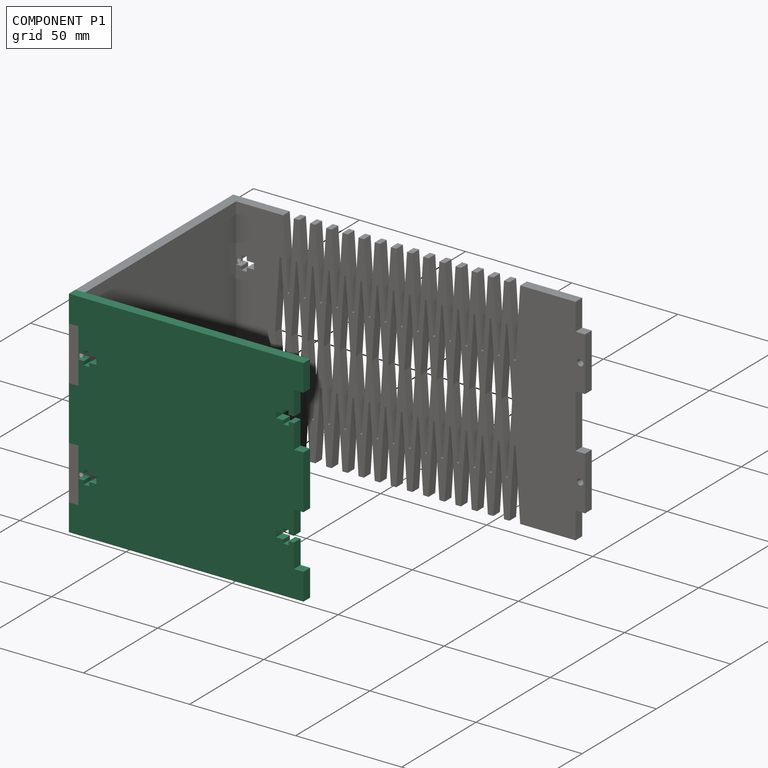
[diagram: component P1 — assembled]
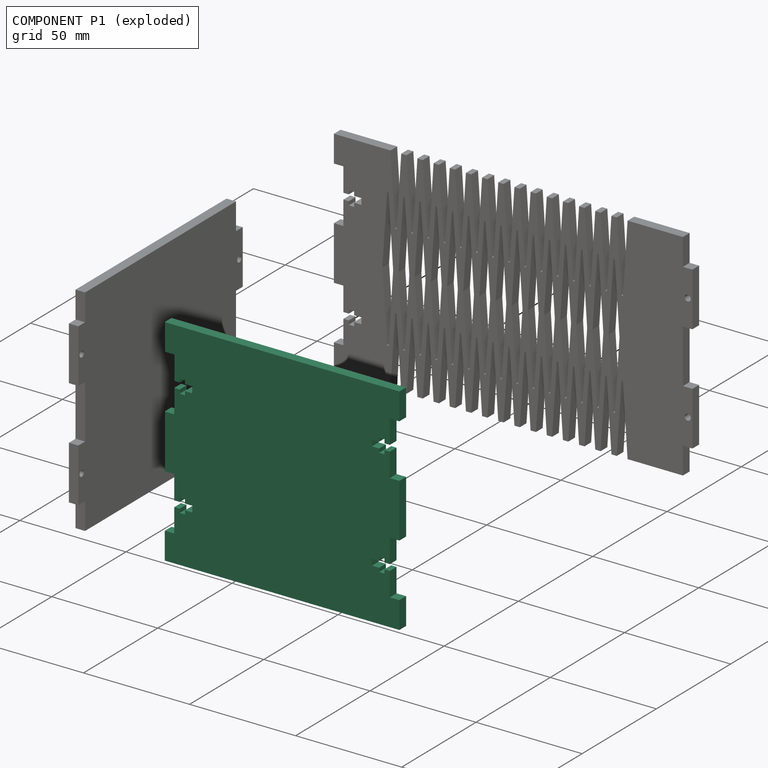
[diagram: component P1 — exploded]
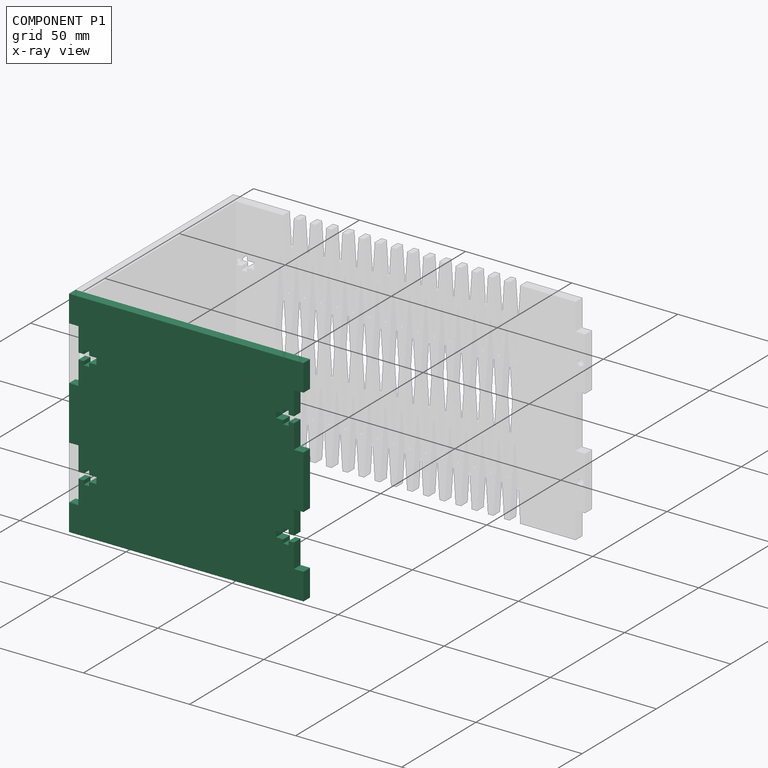
[diagram: component P1 — x-ray view]
COMPONENT P1 — recipe-attached (CADFS 00814796, mesh-verified: the recipe's output STEP matches this component's geometry to below the mesh-comparison resolution (tessellation chordal tolerance ~0.225 mm)).
Held by: PARALLEL mate "Parallel 1" to P0; PARALLEL mate "Parallel 2" to P0; PLANAR mate "Planar 1" to P0; SLIDER mate "Slider 1" to P0.
Construction recipe (FeatureScript — the CAD program that rebuilds this solid; sketch coordinates are in the units given by the * unit suffixes, e.g. mm):

FeatureScript 1511;
import(path : "onshape/std/geometry.fs", version : "1511.0");
import(path : "onshape/std/common.fs", version : "1511.0");
const mm = millimeter;
const VERTEX = EntityType.VERTEX;
const EDGE = EntityType.EDGE;
const FACE = EntityType.FACE;
const BODY = EntityType.BODY;
function v(x, y){return vector(x, y);}
function OD(order){return orderDisambiguation(order);}
function OSD(set){return originalSetDisambiguation(set);}
function TD(topology){return topologyDisambiguation(topology);}
function TDD(query){return trueDependencyDisambiguation(query);}
function sQuery(a, b, c) {return sketchEntityQuery(a, b, c);}

annotation { "Feature Type Name" : "Feature", "Feature Type Description" : "" }
export const myFeature = defineFeature(function(context is Context, id is Id, definition is map)
    precondition{}
    {
        {
            var Q0;
            Q0=qCreatedBy(makeId("Top.planeOp"),FACE);
            var sketch = newSketch(context, id + "F0", { "sketchPlane" : qUnion([Q0])});
            skLineSegment(sketch, "E0.bottom", {"start": v(-50.8, 50.8) * mm, "end": v(50.8, 50.8) * mm});
            skLineSegment(sketch, "E0.top", {"start": v(-50.8, -50.8) * mm, "end": v(50.8, -50.8) * mm});
            skLineSegment(sketch, "E0.left", {"start": v(-50.8, 38.1) * mm, "end": v(-50.8, 26.85) * mm});
            skLineSegment(sketch, "E1", {"start": v(-50.8, 50.8) * mm, "end": v(50.8, -50.8) * mm, "construction": true});
            skLineSegment(sketch, "E2", {"start": v(-50.8, 50.8) * mm, "end": v(-55.3, 50.8) * mm});
            skLineSegment(sketch, "E3", {"start": v(-55.3, 50.8) * mm, "end": v(-55.3, 38.1) * mm});
            skLineSegment(sketch, "E4", {"start": v(-55.3, 38.1) * mm, "end": v(-50.8, 38.1) * mm});
            skLineSegment(sketch, "E5", {"start": v(-50.8, 12.7) * mm, "end": v(-55.3, 12.7) * mm});
            skLineSegment(sketch, "E6", {"start": v(-55.3, 12.7) * mm, "end": v(-55.3, 0) * mm});
            skLineSegment(sketch, "E7", {"start": v(-55.3, 0) * mm, "end": v(50.8, 0) * mm, "construction": true});
            skLineSegment(sketch, "E8", {"start": v(-50.8, 26.85) * mm, "end": v(-48.26, 26.85) * mm});
            skLineSegment(sketch, "E9", {"start": v(-48.26, 26.85) * mm, "end": v(-48.26, 28.64) * mm});
            skLineSegment(sketch, "E10", {"start": v(-48.26, 28.64) * mm, "end": v(-45.75, 28.64) * mm});
            skLineSegment(sketch, "E11", {"start": v(-45.75, 28.64) * mm, "end": v(-45.75, 26.85) * mm});
            skLineSegment(sketch, "E12", {"start": v(-45.75, 26.85) * mm, "end": v(-42.34, 26.85) * mm});
            skLineSegment(sketch, "E13", {"start": v(-42.34, 26.85) * mm, "end": v(-42.34, 23.95) * mm});
            skLineSegment(sketch, "E14", {"start": v(-42.34, 23.95) * mm, "end": v(-45.75, 23.95) * mm});
            skLineSegment(sketch, "E15", {"start": v(-45.75, 23.95) * mm, "end": v(-45.75, 22.16) * mm});
            skLineSegment(sketch, "E16", {"start": v(-45.75, 22.16) * mm, "end": v(-48.26, 22.16) * mm});
            skLineSegment(sketch, "E17", {"start": v(-48.26, 22.16) * mm, "end": v(-48.26, 23.95) * mm});
            skLineSegment(sketch, "E18", {"start": v(-48.26, 23.95) * mm, "end": v(-50.8, 23.95) * mm});
            skLineSegment(sketch, "E19", {"start": v(-48.26, 26.85) * mm, "end": v(-48.26, 23.95) * mm, "construction": true});
            skLineSegment(sketch, "E20", {"start": v(-45.75, 26.85) * mm, "end": v(-45.75, 23.95) * mm, "construction": true});
            skLineSegment(sketch, "E21", {"start": v(-42.34, 25.4) * mm, "end": v(-50.8, 25.4) * mm, "construction": true});
            skPoint(sketch, "E21.endSnap0", {"position": v(-45.75, 25.4) * mm});
            skLineSegment(sketch, "E22", {"start": v(-50.8, 23.95) * mm, "end": v(-50.8, 12.7) * mm});
            skPoint(sketch, "E23.MirrorCS.end.orphan", {"position": v(-55.3, 0) * mm});
            skPoint(sketch, "E24.MirrorCS.start.orphan", {"position": v(-50.8, -50.8) * mm});
            skLineSegment(sketch, "E25.MirrorCS", {"start": v(-48.26, -28.64) * mm, "end": v(-45.75, -28.64) * mm});
            skLineSegment(sketch, "E26.MirrorCS", {"start": v(-45.75, -28.64) * mm, "end": v(-45.75, -26.85) * mm});
            skLineSegment(sketch, "E27.MirrorCS", {"start": v(-48.26, -26.85) * mm, "end": v(-48.26, -28.64) * mm});
            skLineSegment(sketch, "E28.MirrorCS", {"start": v(-45.75, -26.85) * mm, "end": v(-45.75, -23.95) * mm, "construction": true});
            skLineSegment(sketch, "E29.MirrorCS", {"start": v(-45.75, -23.95) * mm, "end": v(-45.75, -22.16) * mm});
            skLineSegment(sketch, "E30.MirrorCS", {"start": v(-48.26, -23.95) * mm, "end": v(-50.8, -23.95) * mm});
            skLineSegment(sketch, "E31.MirrorCS", {"start": v(-50.8, -26.85) * mm, "end": v(-48.26, -26.85) * mm});
            skLineSegment(sketch, "E32.MirrorCS", {"start": v(-42.34, -25.4) * mm, "end": v(-50.8, -25.4) * mm, "construction": true});
            skLineSegment(sketch, "E33.MirrorCS", {"start": v(-48.26, -26.85) * mm, "end": v(-48.26, -23.95) * mm, "construction": true});
            skLineSegment(sketch, "E34.MirrorCS", {"start": v(-48.26, -22.16) * mm, "end": v(-48.26, -23.95) * mm});
            skLineSegment(sketch, "E35.MirrorCS", {"start": v(-55.3, -38.1) * mm, "end": v(-50.8, -38.1) * mm});
            skLineSegment(sketch, "E36.MirrorCS", {"start": v(-42.34, -26.85) * mm, "end": v(-42.34, -23.95) * mm});
            skLineSegment(sketch, "E37.MirrorCS", {"start": v(-45.75, -22.16) * mm, "end": v(-48.26, -22.16) * mm});
            skLineSegment(sketch, "E38.MirrorCS", {"start": v(-50.8, -50.8) * mm, "end": v(-55.3, -50.8) * mm});
            skLineSegment(sketch, "E39.MirrorCS", {"start": v(-42.34, -23.95) * mm, "end": v(-45.75, -23.95) * mm});
            skLineSegment(sketch, "E40.MirrorCS", {"start": v(-50.8, -12.7) * mm, "end": v(-55.3, -12.7) * mm});
            skLineSegment(sketch, "E41.MirrorCS", {"start": v(-45.75, -26.85) * mm, "end": v(-42.34, -26.85) * mm});
            skLineSegment(sketch, "E42.MirrorCS", {"start": v(-50.8, -23.95) * mm, "end": v(-50.8, -12.7) * mm});
            skPoint(sketch, "E43.MirrorP", {"position": v(-45.75, -25.4) * mm});
            skLineSegment(sketch, "E44.MirrorCS", {"start": v(-55.3, -50.8) * mm, "end": v(-55.3, -38.1) * mm});
            skLineSegment(sketch, "E45.MirrorCS", {"start": v(-50.8, -38.1) * mm, "end": v(-50.8, -26.85) * mm});
            skLineSegment(sketch, "E46.MirrorCS", {"start": v(-55.3, -12.7) * mm, "end": v(-55.3, 0) * mm});
            skLineSegment(sketch, "E47", {"start": v(0, 50.8) * mm, "end": v(0, -50.8) * mm, "construction": true});
            skLineSegment(sketch, "E48.MirrorCS", {"start": v(45.75, -28.64) * mm, "end": v(45.75, -26.85) * mm});
            skLineSegment(sketch, "E49.MirrorCS", {"start": v(48.26, 22.16) * mm, "end": v(48.26, 23.95) * mm});
            skLineSegment(sketch, "E50.MirrorCS", {"start": v(48.26, -26.85) * mm, "end": v(48.26, -28.64) * mm});
            skLineSegment(sketch, "E51.MirrorCS", {"start": v(45.75, 23.95) * mm, "end": v(45.75, 22.16) * mm});
            skLineSegment(sketch, "E52.MirrorCS", {"start": v(45.75, 28.64) * mm, "end": v(45.75, 26.85) * mm});
            skLineSegment(sketch, "E53.MirrorCS", {"start": v(45.75, 26.85) * mm, "end": v(42.34, 26.85) * mm});
            skLineSegment(sketch, "E54.MirrorCS", {"start": v(50.8, 26.85) * mm, "end": v(48.26, 26.85) * mm});
            skLineSegment(sketch, "E55.MirrorCS", {"start": v(45.75, -26.85) * mm, "end": v(45.75, -23.95) * mm, "construction": true});
            skLineSegment(sketch, "E56.MirrorCS", {"start": v(48.26, 26.85) * mm, "end": v(48.26, 23.95) * mm, "construction": true});
            skLineSegment(sketch, "E57.MirrorCS", {"start": v(48.26, 26.85) * mm, "end": v(48.26, 28.64) * mm});
            skLineSegment(sketch, "E58.MirrorCS", {"start": v(48.26, 28.64) * mm, "end": v(45.75, 28.64) * mm});
            skLineSegment(sketch, "E59.MirrorCS", {"start": v(42.34, 25.4) * mm, "end": v(50.8, 25.4) * mm, "construction": true});
            skLineSegment(sketch, "E60.MirrorCS", {"start": v(48.26, 23.95) * mm, "end": v(50.8, 23.95) * mm});
            skLineSegment(sketch, "E61.MirrorCS", {"start": v(42.34, 23.95) * mm, "end": v(45.75, 23.95) * mm});
            skLineSegment(sketch, "E62.MirrorCS", {"start": v(42.34, -25.4) * mm, "end": v(50.8, -25.4) * mm, "construction": true});
            skLineSegment(sketch, "E63.MirrorCS", {"start": v(45.75, 26.85) * mm, "end": v(45.75, 23.95) * mm, "construction": true});
            skLineSegment(sketch, "E64.MirrorCS", {"start": v(48.26, -26.85) * mm, "end": v(48.26, -23.95) * mm, "construction": true});
            skLineSegment(sketch, "E65.MirrorCS", {"start": v(45.75, -26.85) * mm, "end": v(42.34, -26.85) * mm});
            skLineSegment(sketch, "E66.MirrorCS", {"start": v(48.26, -28.64) * mm, "end": v(45.75, -28.64) * mm});
            skLineSegment(sketch, "E67.MirrorCS", {"start": v(50.8, -26.85) * mm, "end": v(48.26, -26.85) * mm});
            skLineSegment(sketch, "E68.MirrorCS", {"start": v(45.75, 22.16) * mm, "end": v(48.26, 22.16) * mm});
            skLineSegment(sketch, "E69.MirrorCS", {"start": v(45.75, -23.95) * mm, "end": v(45.75, -22.16) * mm});
            skLineSegment(sketch, "E70.MirrorCS", {"start": v(45.75, -22.16) * mm, "end": v(48.26, -22.16) * mm});
            skLineSegment(sketch, "E71.MirrorCS", {"start": v(48.26, -23.95) * mm, "end": v(50.8, -23.95) * mm});
            skLineSegment(sketch, "E72.MirrorCS", {"start": v(42.34, -23.95) * mm, "end": v(45.75, -23.95) * mm});
            skLineSegment(sketch, "E73.MirrorCS", {"start": v(48.26, -22.16) * mm, "end": v(48.26, -23.95) * mm});
            skLineSegment(sketch, "E74.MirrorCS", {"start": v(55.3, -38.1) * mm, "end": v(50.8, -38.1) * mm});
            skLineSegment(sketch, "E75.MirrorCS", {"start": v(55.3, 38.1) * mm, "end": v(50.8, 38.1) * mm});
            skLineSegment(sketch, "E76.MirrorCS", {"start": v(50.8, -12.7) * mm, "end": v(55.3, -12.7) * mm});
            skLineSegment(sketch, "E77.MirrorCS", {"start": v(50.8, 50.8) * mm, "end": v(55.3, 50.8) * mm});
            skLineSegment(sketch, "E78.MirrorCS", {"start": v(50.8, 12.7) * mm, "end": v(55.3, 12.7) * mm});
            skLineSegment(sketch, "E79.MirrorCS", {"start": v(50.8, -50.8) * mm, "end": v(55.3, -50.8) * mm});
            skLineSegment(sketch, "E80.MirrorCS", {"start": v(50.8, 23.95) * mm, "end": v(50.8, 12.7) * mm});
            skPoint(sketch, "E81.MirrorP", {"position": v(55.3, 0) * mm});
            skLineSegment(sketch, "E82.MirrorCS", {"start": v(50.8, -23.95) * mm, "end": v(50.8, -12.7) * mm});
            skLineSegment(sketch, "E83.MirrorCS", {"start": v(50.8, 38.1) * mm, "end": v(50.8, 26.85) * mm});
            skLineSegment(sketch, "E84.MirrorCS", {"start": v(55.3, 12.7) * mm, "end": v(55.3, 0) * mm});
            skLineSegment(sketch, "E85.MirrorCS", {"start": v(55.3, -12.7) * mm, "end": v(55.3, 0) * mm});
            skPoint(sketch, "E86.MirrorP", {"position": v(45.75, 25.4) * mm});
            skPoint(sketch, "E87.MirrorP", {"position": v(45.75, -25.4) * mm});
            skLineSegment(sketch, "E88.MirrorCS", {"start": v(50.8, -38.1) * mm, "end": v(50.8, -26.85) * mm});
            skLineSegment(sketch, "E89.MirrorCS", {"start": v(55.3, 50.8) * mm, "end": v(55.3, 38.1) * mm});
            skLineSegment(sketch, "E90.MirrorCS", {"start": v(55.3, -50.8) * mm, "end": v(55.3, -38.1) * mm});
            skPoint(sketch, "E91.MirrorP", {"position": v(50.8, -50.8) * mm});
            skLineSegment(sketch, "E92.MirrorCS", {"start": v(42.34, 26.85) * mm, "end": v(42.34, 23.95) * mm});
            skLineSegment(sketch, "E93.MirrorCS", {"start": v(42.34, -26.85) * mm, "end": v(42.34, -23.95) * mm});
            skSolve(sketch);
        }
        {
            var Q0;
            Q0 = qSketchRegion(id + "F0", true);
            extrude(context, id + "F1", {"entities" : qUnion([Q0]), "depth" : 4.5 * mm, "offsetDistance" : 25.4 * mm});
        }
    });
PROVENANCE & LICENSES
Assembly (occurrences, transforms, mates, per-part STEP geometry): AutoMate dataset, Zenodo record 7776208, CC0.
Construction recipes: CADFS (HuggingFace VladPyatov/CADFS, CC-BY-4.0, layered over the ABC dataset), FeatureScript reconstruction programs keyed by ABC model id.
Join: ABC meta listings map ABC model id -> Onshape documentId; within a shared document, parts are matched by geometric signature (bounding-box dims + volume at 0.1% relative tolerance, exact B-rep face/solid counts).
Verification: 2 of this assembly's 3 components carry a recipe attachment, and every attachment is mesh-verified: the CADFS STEP and the AutoMate member STEP were compared as meshes in their shared local frame (symmetric sampled-point-to-mesh distance); worst across the 2 attachments: below the mesh-comparison resolution (tessellation chordal tolerance ~0.296 mm) on a 197 mm part.
Renders: orthographic iso camera (az 35 / el 25); the floor grid conveys scale (grid pitch printed in each image; no ruler). In the exploded view each component is displaced by its stored offset vector: the offsets alone carry the explosion direction (mate normal/axis signs are not orientation cues and do not encode it), and separation distances are assigned per mate-chain, not proportionally to assembly-order depth.
